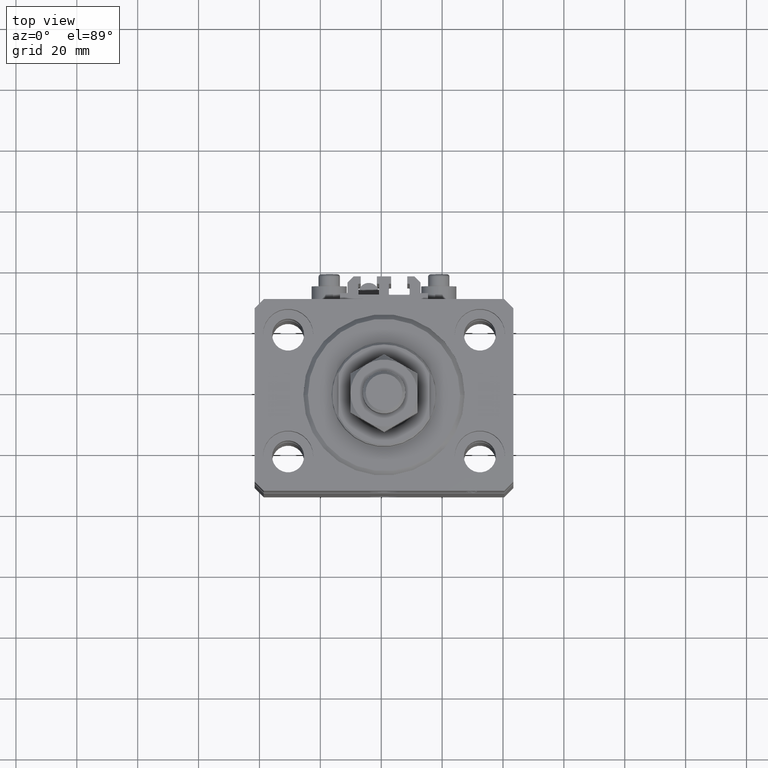
[diagram: clean part render]
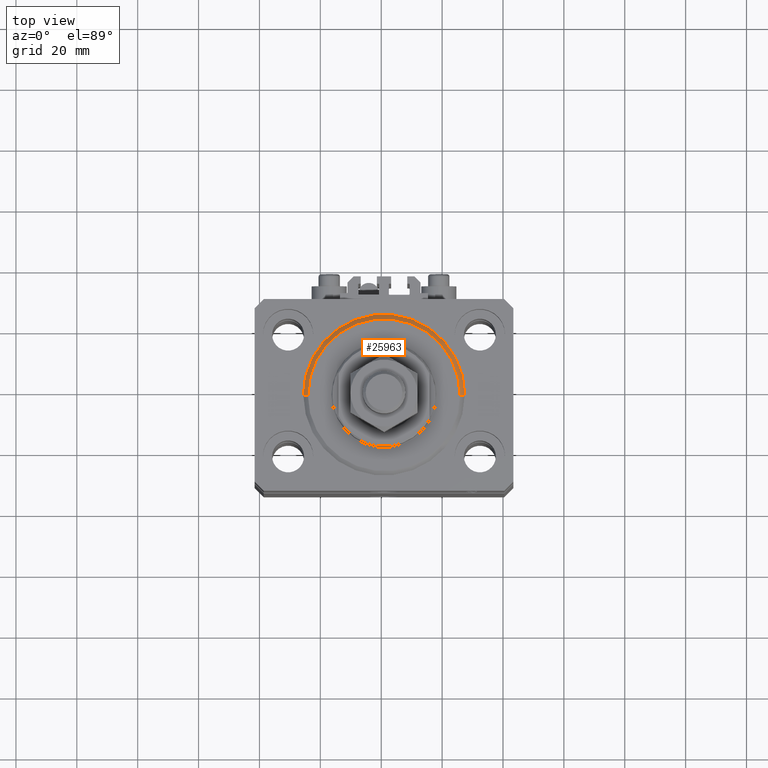
[diagram: same view with one face highlighted and labeled with its STEP entity id]
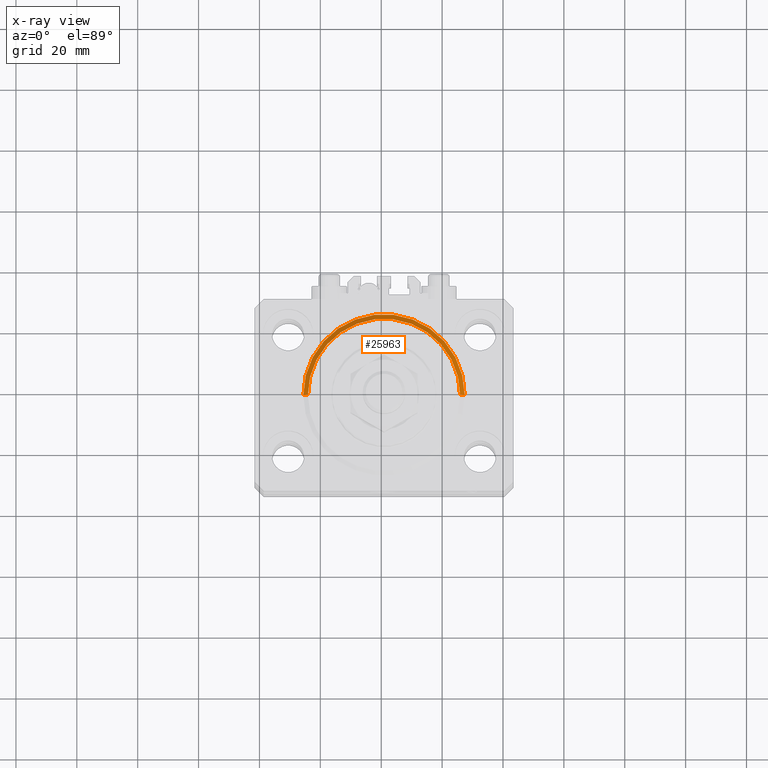
[diagram: x-ray of the same camera — body ghosted, the highlighted face saturated]
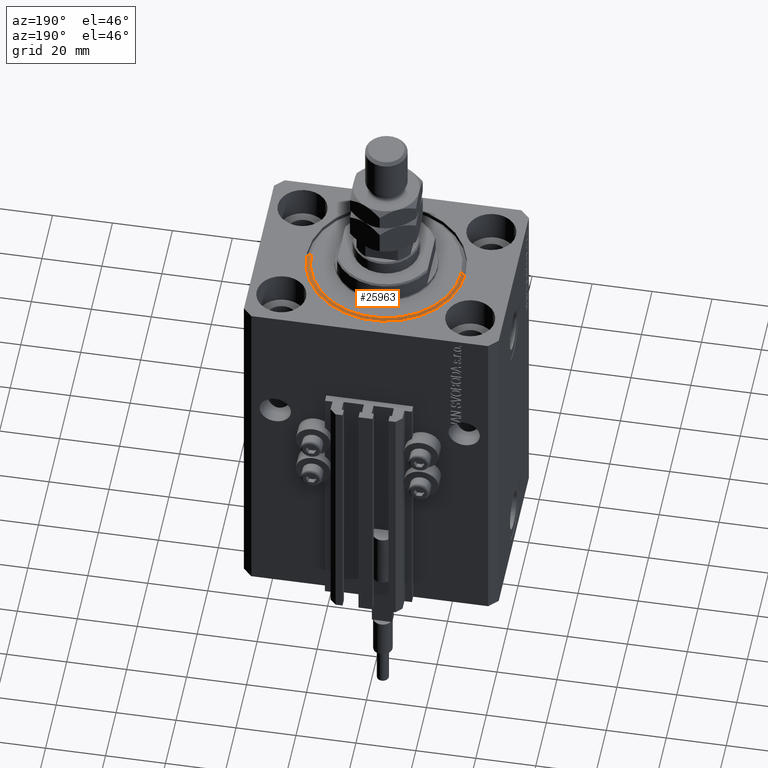
[diagram: same view with one face highlighted and labeled with its STEP entity id]
A machine part, top view. The second image highlights one B-rep face of the part: STEP entity #25963.
The next image is the same camera in x-ray: the body ghosted, the highlighted face saturated — about 0% of this face is hidden behind the body in this view.
A second angle (auxiliary view) of the same face is appended — the face is thin or edge-on in the first view.
In plain terms, the highlighted conical surface has half-angle 45 deg.
Its self-contained STEP definition (entity closure, byte-faithful):
#1105 = FACE_OUTER_BOUND ( 'NONE', #42054, .T. ) ;
#1396 = VERTEX_POINT ( 'NONE', #21822 ) ;
#3973 = VERTEX_POINT ( 'NONE', #30788 ) ;
#4724 = CIRCLE ( 'NONE', #32967, 26.50000000000000355 ) ;
#6126 = ORIENTED_EDGE ( 'NONE', *, *, #41785, .F. ) ;
#7843 = EDGE_CURVE ( 'NONE', #39251, #3973, #4724, .T. ) ;
#9136 = CARTESIAN_POINT ( 'NONE',  ( 0.000000000000000000, 0.000000000000000000, 1.500000000000046407 ) ) ;
#12085 = LINE ( 'NONE', #12563, #44370 ) ;
#12563 = CARTESIAN_POINT ( 'NONE',  ( 26.50000000000000355, 0.000000000000000000, 1.500000000000046407 ) ) ;
#14227 = LINE ( 'NONE', #48347, #47974 ) ;
#14909 = AXIS2_PLACEMENT_3D ( 'NONE', #28134, #35712, #39255 ) ;
#19997 = CARTESIAN_POINT ( 'NONE',  ( -24.99999999999995026, 3.153465507804431248E-15, 0.000000000000000000 ) ) ;
#20344 = CIRCLE ( 'NONE', #30838, 24.99999999999995026 ) ;
#20396 = EDGE_CURVE ( 'NONE', #47225, #1396, #20344, .T. ) ;
#21028 = DIRECTION ( 'NONE',  ( 1.000000000000000000, 0.000000000000000000, 0.000000000000000000 ) ) ;
#21822 = CARTESIAN_POINT ( 'NONE',  ( 24.99999999999995026, 0.000000000000000000, 0.000000000000000000 ) ) ;
#21979 = DIRECTION ( 'NONE',  ( -0.000000000000000000, -0.000000000000000000, -1.000000000000000000 ) ) ;
#25963 = ADVANCED_FACE ( 'NONE', ( #1105 ), #44779, .T. ) ;
#26021 = CARTESIAN_POINT ( 'NONE',  ( 0.000000000000000000, 0.000000000000000000, 0.000000000000000000 ) ) ;
#26506 = ORIENTED_EDGE ( 'NONE', *, *, #7843, .F. ) ;
#27335 = ORIENTED_EDGE ( 'NONE', *, *, #20396, .F. ) ;
#27504 = DIRECTION ( 'NONE',  ( 0.7071067811865491270, 0.000000000000000000, 0.7071067811865459074 ) ) ;
#28134 = CARTESIAN_POINT ( 'NONE',  ( 0.000000000000000000, 0.000000000000000000, 1.500000000000046407 ) ) ;
#29256 = EDGE_CURVE ( 'NONE', #47225, #3973, #14227, .T. ) ;
#30788 = CARTESIAN_POINT ( 'NONE',  ( -26.50000000000000355, 0.000000000000000000, 1.500000000000046407 ) ) ;
#30838 = AXIS2_PLACEMENT_3D ( 'NONE', #26021, #21979, #37608 ) ;
#31662 = ORIENTED_EDGE ( 'NONE', *, *, #29256, .T. ) ;
#31894 = DIRECTION ( 'NONE',  ( -0.000000000000000000, -0.000000000000000000, 1.000000000000000000 ) ) ;
#32967 = AXIS2_PLACEMENT_3D ( 'NONE', #9136, #31894, #21028 ) ;
#35712 = DIRECTION ( 'NONE',  ( -0.000000000000000000, -0.000000000000000000, 1.000000000000000000 ) ) ;
#37608 = DIRECTION ( 'NONE',  ( 1.000000000000000000, 0.000000000000000000, 0.000000000000000000 ) ) ;
#39251 = VERTEX_POINT ( 'NONE', #44040 ) ;
#39255 = DIRECTION ( 'NONE',  ( 1.000000000000000000, 0.000000000000000000, 0.000000000000000000 ) ) ;
#40757 = DIRECTION ( 'NONE',  ( -0.7071067811865491270, 8.659560562354952580E-17, 0.7071067811865459074 ) ) ;
#41785 = EDGE_CURVE ( 'NONE', #1396, #39251, #12085, .T. ) ;
#42054 = EDGE_LOOP ( 'NONE', ( #27335, #31662, #26506, #6126 ) ) ;
#44040 = CARTESIAN_POINT ( 'NONE',  ( 26.50000000000000355, 3.245314017740485765E-15, 1.500000000000046407 ) ) ;
#44370 = VECTOR ( 'NONE', #27504, 1000.000000000000000 ) ;
#44779 = CONICAL_SURFACE ( 'NONE', #14909, 26.50000000000000355, 0.7853981633974506105 ) ;
#47225 = VERTEX_POINT ( 'NONE', #19997 ) ;
#47974 = VECTOR ( 'NONE', #40757, 1000.000000000000000 ) ;
#48347 = CARTESIAN_POINT ( 'NONE',  ( -26.50000000000000355, 3.245314017740486554E-15, 1.500000000000046407 ) ) ;